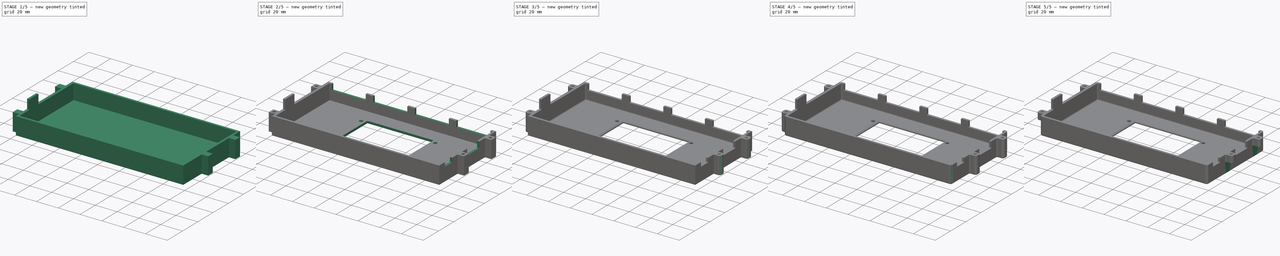
[diagram: build sequence overview — one tinted view per stage of 5, left to right]
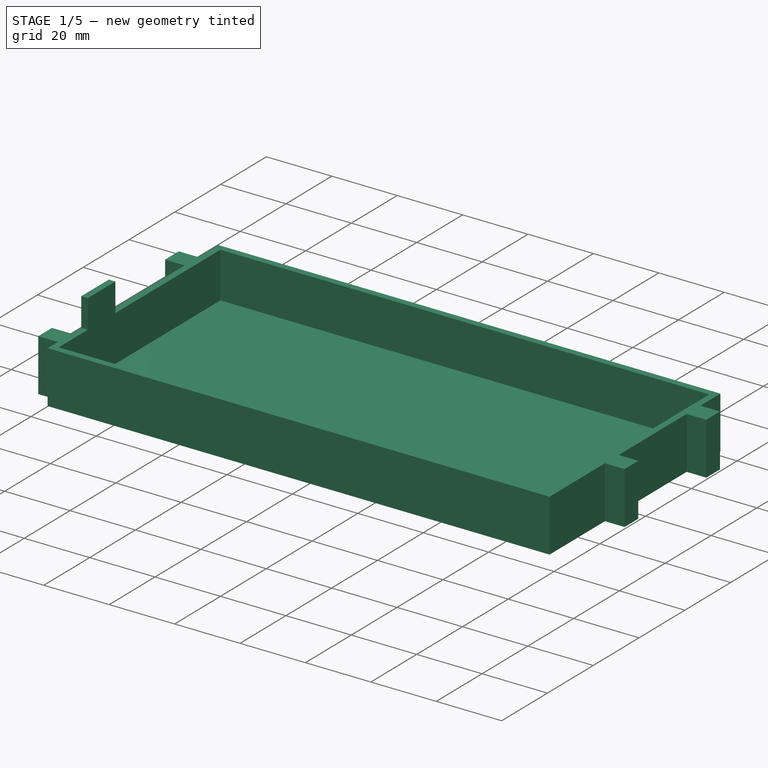
[diagram: stage 1 of 5 — iso view after this stage's code; geometry added in this stage tinted green]
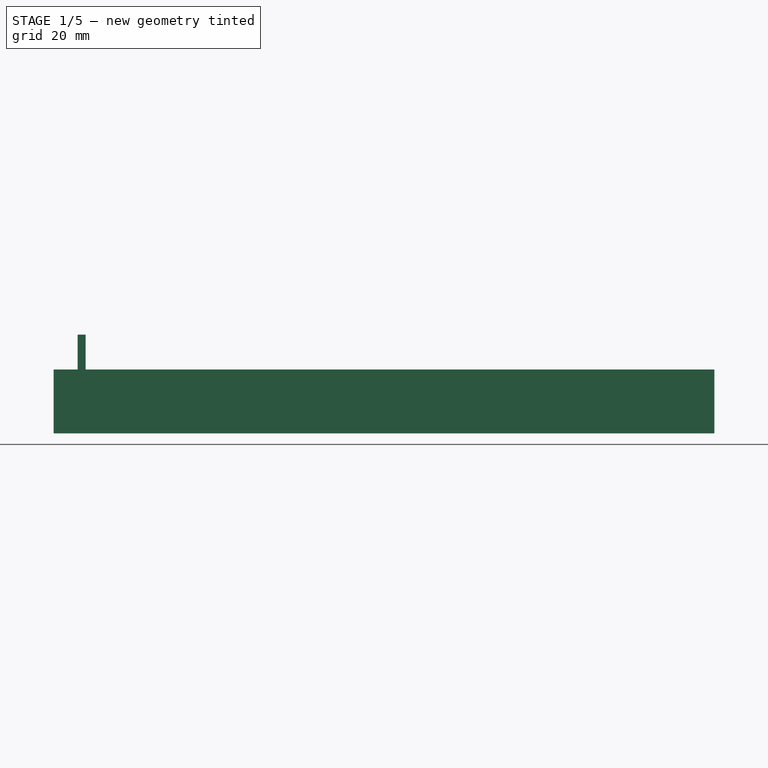
[diagram: stage 1 of 5 — front view after this stage's code; geometry added in this stage tinted green]
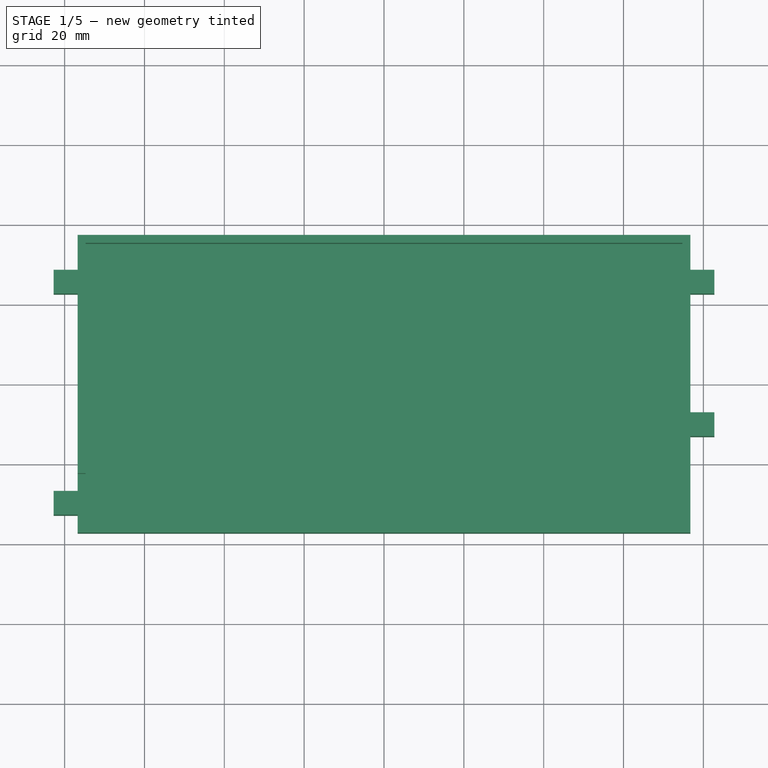
[diagram: stage 1 of 5 — top view after this stage's code; geometry added in this stage tinted green]
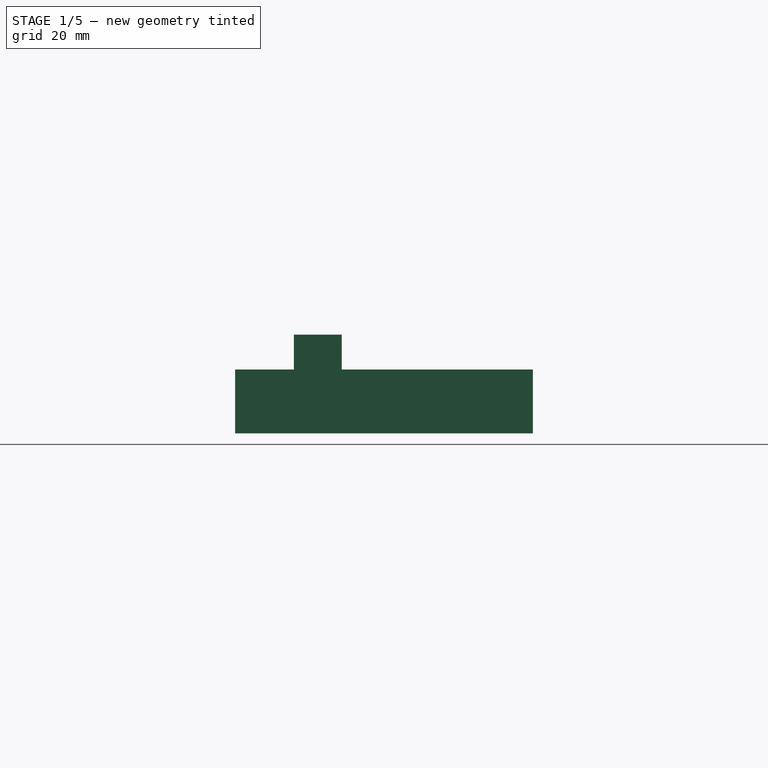
[diagram: stage 1 of 5 — right view after this stage's code; geometry added in this stage tinted green]
FCSTD DOCUMENT  (FreeCAD 0.19R24267 +148 (Git))
Label: case_top
License: All rights reserved
LicenseURL: http://en.wikipedia.org/wiki/All_rights_reserved
objects: Sketcher::SketchObject×10, PartDesign::Fillet×10, PartDesign::Pocket×8, PartDesign::Pad×1, PartDesign::Hole×1, PartDesign::Chamfer×1, PartDesign::Body×1
note: 53 computed .brp shape members not serialized (recipe doc carries the construction recipe); baked Part::Feature solids carry a one-line shape summary decoded from their .brp

FEATURE [Sketcher::SketchObject] Sketch
  FullyConstrained = true
  MapMode = 5
  Support = -> [XY_Plane]
  sketch-geometry (20):
    g0: LineSegment StartX=-76.75 StartY=37.3 StartZ=0 EndX=76.75 EndY=37.3 EndZ=0
    g1: LineSegment StartX=76.75 StartY=37.3 StartZ=0 EndX=76.75 EndY=28.57 EndZ=0
    g2: LineSegment StartX=76.75 StartY=-37.3 StartZ=0 EndX=-76.75 EndY=-37.3 EndZ=0
    g3: LineSegment StartX=-76.75 StartY=-37.3 StartZ=0 EndX=-76.75 EndY=-32.83 EndZ=0
    g4: LineSegment StartX=-76.75 StartY=-32.83 StartZ=0 EndX=-82.75 EndY=-32.83 EndZ=0
    g5: LineSegment StartX=-82.75 StartY=-32.83 StartZ=0 EndX=-82.75 EndY=-26.83 EndZ=0
    g6: LineSegment StartX=-82.75 StartY=-26.83 StartZ=0 EndX=-76.75 EndY=-26.83 EndZ=0
    g7: LineSegment StartX=-76.75 StartY=-26.83 StartZ=0 EndX=-76.75 EndY=22.57 EndZ=0
    g8: LineSegment StartX=-82.75 StartY=28.57 StartZ=0 EndX=-76.75 EndY=28.57 EndZ=0
    g9: LineSegment StartX=-76.75 StartY=22.57 StartZ=0 EndX=-82.75 EndY=22.57 EndZ=0
    g10: LineSegment StartX=-82.75 StartY=22.57 StartZ=0 EndX=-82.75 EndY=28.57 EndZ=0
    g11: LineSegment StartX=-76.75 StartY=28.57 StartZ=0 EndX=-76.75 EndY=37.3 EndZ=0
    g12: LineSegment StartX=76.75 StartY=-13.13 StartZ=0 EndX=82.75 EndY=-13.13 EndZ=0
    g13: LineSegment StartX=82.75 StartY=-13.13 StartZ=0 EndX=82.75 EndY=-7.13 EndZ=0
    g14: LineSegment StartX=82.75 StartY=-7.13 StartZ=0 EndX=76.75 EndY=-7.13 EndZ=0
    g15: LineSegment StartX=76.75 StartY=28.57 StartZ=0 EndX=82.75 EndY=28.57 EndZ=0
    g16: LineSegment StartX=82.75 StartY=28.57 StartZ=0 EndX=82.75 EndY=22.57 EndZ=0
    g17: LineSegment StartX=82.75 StartY=22.57 StartZ=0 EndX=76.75 EndY=22.57 EndZ=0
    g18: LineSegment StartX=76.75 StartY=22.57 StartZ=0 EndX=76.75 EndY=-7.13 EndZ=0
    g19: LineSegment StartX=76.75 StartY=-13.13 StartZ=0 EndX=76.75 EndY=-37.3 EndZ=0
  constraints (57):
    c: Coincident(g0,g1)
    c: Coincident(g19,g2)
    c: Coincident(g2,g3)
    c: Coincident(g11,g0)
    c: Horizontal(g0)
    c: Horizontal(g2)
    c: Vertical(g1)
    c: Vertical(g3)
    c: DistanceX(g2,g2) = 153.5
    c: DistanceY(g19,g1) = 74.6
    c: Symmetric(g19,g0,g-1)
    c: Horizontal(g4)
    c: Coincident(g5,g4)
    c: Vertical(g5)
    c: Coincident(g6,g5)
    c: DistanceY(g5,g5) = 6
    c: DistanceY(g2,g4) = 4.47
    c: Coincident(g3,g4)
    c: Coincident(g7,g6)
    c: Tangent(g3,g7)
    c: DistanceX(g6,g6) = 6
    c: DistanceY(g3,g6) = 6
    c: Coincident(g9,g10)
    c: Coincident(g10,g8)
    c: Horizontal(g8)
    c: Horizontal(g9)
    c: Vertical(g10)
    c: Tangent(g7,g11)
    c: DistanceY(g10,g10) = 6
    c: DistanceX(g9,g9) = 6
    c: DistanceY(g8,g0) = 8.73
    c: Coincident(g8,g11)
    c: Coincident(g9,g7)
    c: Coincident(g12,g13)
    c: Coincident(g13,g14)
    c: Horizontal(g12)
    c: Horizontal(g14)
    c: Vertical(g13)
    c: PointOnObject(g14,g1)
    c: PointOnObject(g12,g1)
    c: DistanceX(g14,g14) = 6
    c: DistanceY(g13,g13) = 6
    c: Coincident(g15,g16)
    c: Coincident(g16,g17)
    c: Horizontal(g15)
    c: Horizontal(g17)
    c: Vertical(g16)
    c: DistanceX(g17,g17) = 6
    c: DistanceY(g16,g16) = 6
    c: Coincident(g1,g15)
    c: Coincident(g18,g17)
    c: Tangent(g1,g18)
    c: PointOnObject(g18,g14)
    c: PointOnObject(g19,g12)
    c: Tangent(g18,g19)
    c: DistanceY(g1,g0) = 8.73
    c: DistanceY(g13,g16) = 29.7
FEATURE [PartDesign::Pad] Pad
  Direction = (1,1,1)
  Length = 15
  Length2 = 10
  Profile = -> Sketch
  Reversed = true
  Type = 4
FEATURE [Sketcher::SketchObject] Sketch016
  ExternalGeometry = -> [Pad]
  FullyConstrained = true
  MapMode = 5
  Placement = pos=(0,0,15) rot=(0,0,1;0rad)
  Support = -> [Pad]
  sketch-geometry (4):
    g0: LineSegment StartX=-74.75 StartY=35.3 StartZ=0 EndX=74.75 EndY=35.3 EndZ=0
    g1: LineSegment StartX=74.75 StartY=35.3 StartZ=0 EndX=74.75 EndY=-35.3 EndZ=0
    g2: LineSegment StartX=74.75 StartY=-35.3 StartZ=0 EndX=-74.75 EndY=-35.3 EndZ=0
    g3: LineSegment StartX=-74.75 StartY=-35.3 StartZ=0 EndX=-74.75 EndY=35.3 EndZ=0
  constraints (12):
    c: Coincident(g0,g1)
    c: Coincident(g1,g2)
    c: Coincident(g2,g3)
    c: Coincident(g3,g0)
    c: Horizontal(g0)
    c: Horizontal(g2)
    c: Vertical(g1)
    c: Vertical(g3)
    c: DistanceX(g-3,g0) = 2
    c: DistanceY(g0,g-3) = 2
    c: DistanceX(g1,g-4) = 2
    c: DistanceY(g-4,g1) = 2
FEATURE [PartDesign::Pocket] Pocket
  BaseFeature = -> Pad
  Length = 23
  Length2 = 100
  Profile = -> Sketch016
  Type = 0
FEATURE [Sketcher::SketchObject] Sketch017
  ExternalGeometry = -> [Pocket]
  FullyConstrained = true
  MapMode = 5
  Placement = pos=(-82.75,0,0) rot=(0.57735,-0.57735,-0.57735;2.0944rad)
  Support = -> [Pocket]
  sketch-geometry (8):
    g0: LineSegment StartX=37.3 StartY=6 StartZ=0 EndX=22.58 EndY=6 EndZ=0
    g1: LineSegment StartX=-37.3 StartY=6 StartZ=0 EndX=-37.3 EndY=15 EndZ=0
    g2: LineSegment StartX=37.3 StartY=15 StartZ=0 EndX=37.3 EndY=6 EndZ=0
    g3: LineSegment StartX=22.58 StartY=6 StartZ=0 EndX=22.58 EndY=14.75 EndZ=0
    g4: LineSegment StartX=10.58 StartY=6 StartZ=0 EndX=10.58 EndY=14.75 EndZ=0
    g5: LineSegment StartX=10.58 StartY=6 StartZ=0 EndX=-37.3 EndY=6 EndZ=0
    g6: LineSegment StartX=22.58 StartY=14.75 StartZ=0 EndX=10.58 EndY=14.75 EndZ=0
    g7: LineSegment StartX=37.3 StartY=15 StartZ=0 EndX=-37.3 EndY=15 EndZ=0
  constraints (23):
    c: Coincident(g5,g1)
    c: Coincident(g2,g0)
    c: Horizontal(g0)
    c: Vertical(g1)
    c: Vertical(g2)
    c: Vertical(g5,g-3)
    c: Vertical(g0,g-4)
    c: DistanceY(g-3,g5) = 16
    c: Vertical(g3)
    c: Vertical(g4)
    c: Coincident(g0,g3)
    c: Coincident(g5,g4)
    c: Tangent(g0,g5)
    c: DistanceX(g0,g0) = 14.72
    c: DistanceX(g4,g0) = 12
    c: Horizontal(g6)
    c: Coincident(g3,g6)
    c: Coincident(g4,g6)
    c: DistanceY(g4,g4) = 8.75
    c: Coincident(g7,g2)
    c: Coincident(g7,g1)
    c: Horizontal(g7)
    c: Horizontal(g2,g-5)
FEATURE [PartDesign::Pocket] Pocket001
  BaseFeature = -> Pocket
  Length = 140
  Length2 = 100
  Profile = -> Sketch017
  Type = 0
FEATURE [Sketcher::SketchObject] Sketch020
  ExternalGeometry = -> [Pocket001]
  FullyConstrained = true
  MapMode = 5
  Placement = pos=(82.75,0,0) rot=(0.57735,0.57735,0.57735;2.0944rad)
  Support = -> [Pocket001]
  sketch-geometry (4):
    g0: LineSegment StartX=37.3 StartY=6 StartZ=0 EndX=-37.3 EndY=6 EndZ=0
    g1: LineSegment StartX=-37.3 StartY=6 StartZ=0 EndX=-37.3 EndY=15 EndZ=0
    g2: LineSegment StartX=-37.3 StartY=15 StartZ=0 EndX=37.3 EndY=15 EndZ=0
    g3: LineSegment StartX=37.3 StartY=15 StartZ=0 EndX=37.3 EndY=6 EndZ=0
  constraints (10):
    c: Coincident(g0,g1)
    c: Coincident(g1,g2)
    c: Coincident(g2,g3)
    c: Coincident(g3,g0)
    c: Horizontal(g0)
    c: Vertical(g1)
    c: Vertical(g3)
    c: Coincident(g2,g-6)
    c: Coincident(g1,g-5)
    c: DistanceY(g-3,g0) = 16
FEATURE [PartDesign::Pocket] Pocket002
  BaseFeature = -> Pocket001
  Length = 0
  Length2 = 100
  Profile = -> Sketch020
  Type = 3
  UpToFace = -> Pocket001 [Face25]
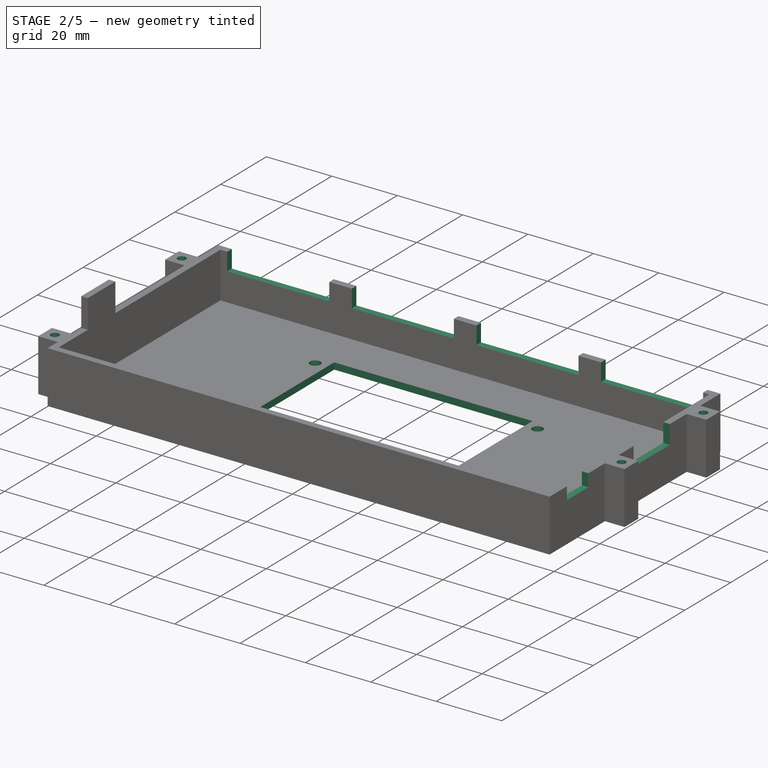
[diagram: stage 2 of 5 — iso view after this stage's code; geometry added in this stage tinted green]
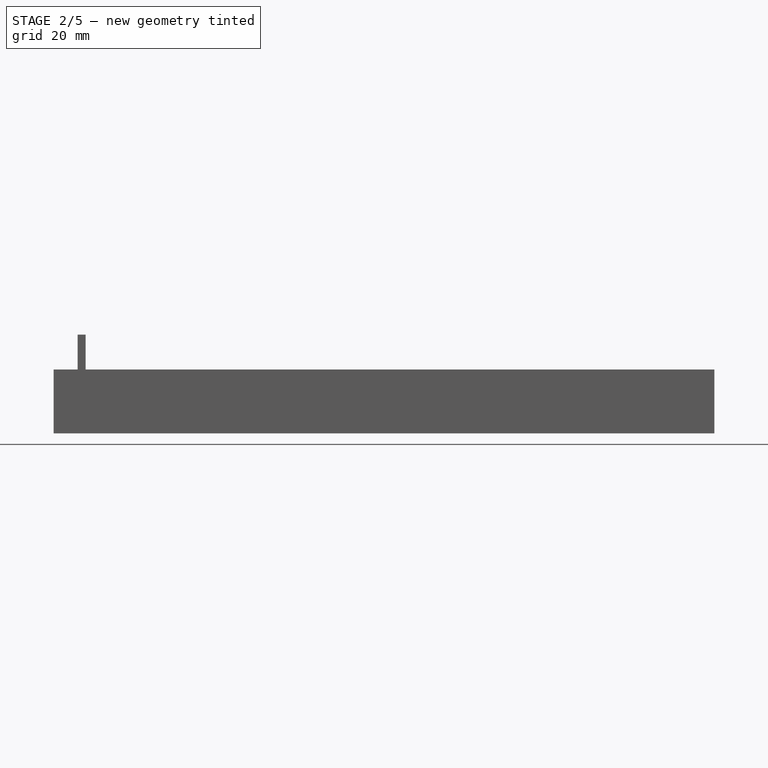
[diagram: stage 2 of 5 — front view after this stage's code; geometry added in this stage tinted green]
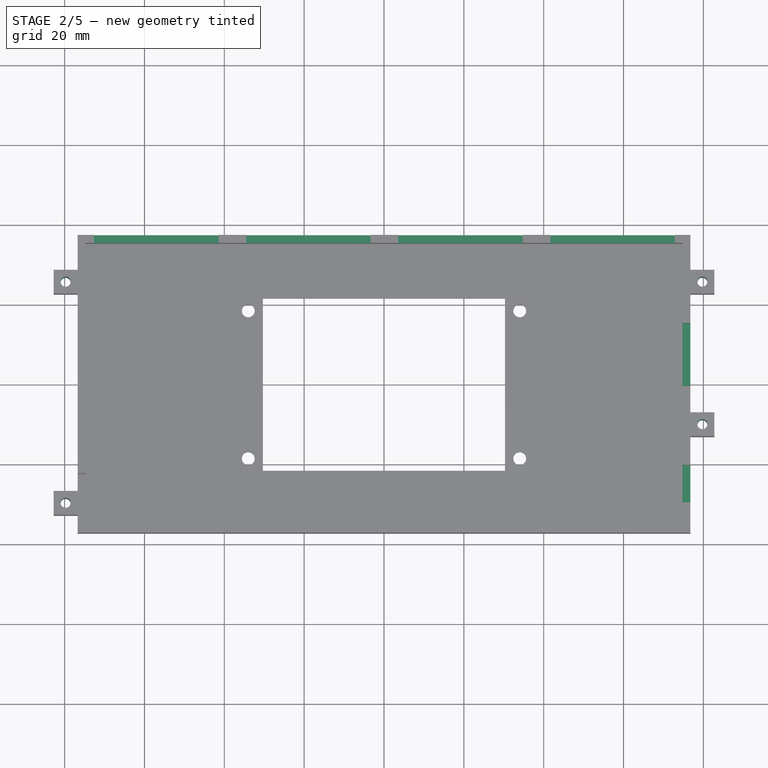
[diagram: stage 2 of 5 — top view after this stage's code; geometry added in this stage tinted green]
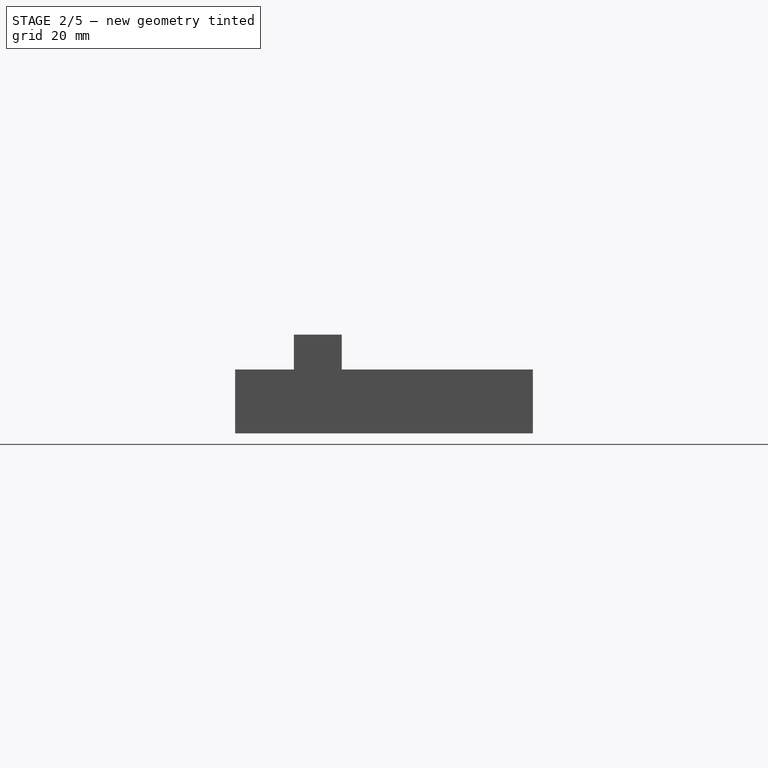
[diagram: stage 2 of 5 — right view after this stage's code; geometry added in this stage tinted green]
FEATURE [Sketcher::SketchObject] Sketch021
  ExternalGeometry = -> [Pocket002]
  FullyConstrained = true
  MapMode = 5
  Placement = pos=(82.75,0,0) rot=(0.57735,0.57735,0.57735;2.0944rad)
  Support = -> [Pocket002]
  sketch-geometry (8):
    g0: LineSegment StartX=-20.33 StartY=2.15 StartZ=0 EndX=-29.73 EndY=2.15 EndZ=0
    g1: LineSegment StartX=-29.73 StartY=2.15 StartZ=0 EndX=-29.73 EndY=6 EndZ=0
    g2: LineSegment StartX=-29.73 StartY=6 StartZ=0 EndX=-20.33 EndY=6 EndZ=0
    g3: LineSegment StartX=-20.33 StartY=6 StartZ=0 EndX=-20.33 EndY=2.15 EndZ=0
    g4: LineSegment StartX=-0.6 StartY=6 StartZ=0 EndX=15.2 EndY=6 EndZ=0
    g5: LineSegment StartX=15.2 StartY=6 StartZ=0 EndX=15.2 EndY=0.3 EndZ=0
    g6: LineSegment StartX=15.2 StartY=0.3 StartZ=0 EndX=-0.6 EndY=0.3 EndZ=0
    g7: LineSegment StartX=-0.6 StartY=0.3 StartZ=0 EndX=-0.6 EndY=6 EndZ=0
  constraints (24):
    c: Coincident(g0,g1)
    c: Coincident(g1,g2)
    c: Coincident(g2,g3)
    c: Coincident(g3,g0)
    c: Horizontal(g0)
    c: Horizontal(g2)
    c: Vertical(g1)
    c: Vertical(g3)
    c: DistanceX(g-3,g0) = 7.57
    c: DistanceY(g1,g1) = 3.85
    c: DistanceX(g0,g0) = 9.4
    c: Coincident(g4,g5)
    c: Coincident(g5,g6)
    c: Coincident(g6,g7)
    c: Vertical(g5)
    c: Vertical(g7)
    c: DistanceX(g-3,g4) = 36.7
    c: DistanceX(g4,g4) = 15.8
    c: DistanceY(g5,g5) = 5.7
    c: PointOnObject(g2,g-5)
    c: Coincident(g4,g7)
    c: Equal(g7,g5)
    c: PointOnObject(g4,g-6)
    c: PointOnObject(g4,g-6)
FEATURE [PartDesign::Pocket] Pocket003
  BaseFeature = -> Pocket002
  Length = 0
  Length2 = 100
  Profile = -> Sketch021
  Type = 3
  UpToFace = -> Pocket002 [Face25]
FEATURE [Sketcher::SketchObject] Sketch019
  ExternalGeometry = -> [Pocket003]
  FullyConstrained = true
  MapMode = 5
  Placement = pos=(0,0,-10) rot=(1,0,0;3.14159rad)
  sketch-geometry (4):
    g0: Circle CenterX=-79.75 CenterY=29.83 CenterZ=0 NormalX=0 NormalY=0 NormalZ=1 AngleXU=0 Radius=1.2
    g1: Circle CenterX=-79.75 CenterY=-25.57 CenterZ=0 NormalX=0 NormalY=0 NormalZ=1 AngleXU=0 Radius=1.2
    g2: Circle CenterX=79.75 CenterY=-25.57 CenterZ=0 NormalX=0 NormalY=0 NormalZ=1 AngleXU=0 Radius=1.2
    g3: Circle CenterX=79.75 CenterY=10.13 CenterZ=0 NormalX=0 NormalY=0 NormalZ=1 AngleXU=0 Radius=1.2
  constraints (12):
    c: Radius(g0) = 1.2
    c: Radius(g1) = 1.2
    c: Radius(g2) = 1.2
    c: Radius(g3) = 1.2
    c: DistanceX(g-4,g0) = 3
    c: DistanceX(g-3,g1) = 3
    c: DistanceX(g2,g-6) = 3
    c: DistanceX(g3,g-5) = 3
    c: DistanceY(g3,g-5) = 3
    c: DistanceY(g-6,g2) = 3
    c: DistanceY(g1,g-3) = 3
    c: DistanceY(g0,g-4) = 3
FEATURE [PartDesign::Hole] Hole
  BaseFeature = -> Pocket003
  Depth = 25
  DepthType = 0
  Diameter = 2.5
  DrillForDepth = false
  DrillPoint = 1
  DrillPointAngle = 118
  HoleCutCountersinkAngle = 90
  HoleCutCustomValues = false
  HoleCutDepth = 0
  HoleCutDiameter = 6.1
  HoleCutType = 0
  ModelActualThread = false
  Profile = -> Sketch019
  Tapered = false
  TaperedAngle = 90
  ThreadAngle = 60
  ThreadClass = 0
  ThreadCutOffInner = 0.0541266
  ThreadCutOffOuter = 0.108253
  ThreadDirection = 0
  ThreadFit = 0
  ThreadPitch = 0.5
  ThreadSize = 9
  ThreadType = 1
  Threaded = true
FEATURE [Sketcher::SketchObject] Sketch022
  ExternalGeometry = -> [Hole]
  FullyConstrained = true
  MapMode = 5
  Placement = pos=(0,37.3,0) rot=(0,0.707107,0.707107;3.14159rad)
  Support = -> [Hole]
  sketch-geometry (16):
    g0: LineSegment StartX=72.65 StartY=0.6 StartZ=0 EndX=41.45 EndY=0.6 EndZ=0
    g1: LineSegment StartX=41.45 StartY=0.6 StartZ=0 EndX=41.45 EndY=6 EndZ=0
    g2: LineSegment StartX=41.45 StartY=6 StartZ=0 EndX=72.65 EndY=6 EndZ=0
    g3: LineSegment StartX=72.65 StartY=6 StartZ=0 EndX=72.65 EndY=0.6 EndZ=0
    g4: LineSegment StartX=34.55 StartY=0.6 StartZ=0 EndX=3.35 EndY=0.6 EndZ=0
    g5: LineSegment StartX=3.35 StartY=0.6 StartZ=0 EndX=3.35 EndY=6 EndZ=0
    g6: LineSegment StartX=3.35 StartY=6 StartZ=0 EndX=34.55 EndY=6 EndZ=0
    g7: LineSegment StartX=34.55 StartY=6 StartZ=0 EndX=34.55 EndY=0.6 EndZ=0
    g8: LineSegment StartX=-3.55 StartY=0.6 StartZ=0 EndX=-34.75 EndY=0.6 EndZ=0
    g9: LineSegment StartX=-34.75 StartY=0.6 StartZ=0 EndX=-34.75 EndY=6 EndZ=0
    g10: LineSegment StartX=-34.75 StartY=6 StartZ=0 EndX=-3.55 EndY=6 EndZ=0
    g11: LineSegment StartX=-3.55 StartY=6 StartZ=0 EndX=-3.55 EndY=0.6 EndZ=0
    g12: LineSegment StartX=-41.65 StartY=0.6 StartZ=0 EndX=-72.85 EndY=0.6 EndZ=0
    g13: LineSegment StartX=-72.85 StartY=0.6 StartZ=0 EndX=-72.85 EndY=6 EndZ=0
    g14: LineSegment StartX=-72.85 StartY=6 StartZ=0 EndX=-41.65 EndY=6 EndZ=0
    g15: LineSegment StartX=-41.65 StartY=6 StartZ=0 EndX=-41.65 EndY=0.6 EndZ=0
  constraints (48):
    c: Coincident(g0,g1)
    c: Coincident(g1,g2)
    c: Coincident(g2,g3)
    c: Coincident(g3,g0)
    c: Horizontal(g0)
    c: Horizontal(g2)
    c: Vertical(g1)
    c: Vertical(g3)
    c: PointOnObject(g1,g-3)
    c: DistanceY(g3,g3) = 5.4
    c: DistanceX(g0,g0) = 31.2
    c: DistanceX(g2,g-3) = 4.1
    c: Coincident(g4,g5)
    c: Coincident(g5,g6)
    c: Coincident(g6,g7)
    c: Coincident(g7,g4)
    c: Horizontal(g4)
    c: Horizontal(g6)
    c: Vertical(g5)
    c: Vertical(g7)
    c: Coincident(g8,g9)
    c: Coincident(g9,g10)
    c: Coincident(g10,g11)
    c: Coincident(g11,g8)
    c: Horizontal(g8)
    c: Horizontal(g10)
    c: Vertical(g9)
    c: Vertical(g11)
    c: Coincident(g12,g13)
    c: Coincident(g13,g14)
    c: Coincident(g14,g15)
    c: Coincident(g15,g12)
    c: Horizontal(g12)
    c: Horizontal(g14)
    c: Vertical(g13)
    c: Vertical(g15)
    c: PointOnObject(g6,g-3)
    c: Equal(g7,g3)
    c: Equal(g4,g0)
    c: DistanceX(g4,g0) = 6.9
    c: PointOnObject(g10,g-3)
    c: Equal(g11,g3)
    c: DistanceX(g8,g4) = 6.9
    c: Equal(g8,g0)
    c: PointOnObject(g14,g-3)
    c: Equal(g15,g3)
    c: Equal(g2,g14)
    c: DistanceX(g12,g8) = 6.9
FEATURE [PartDesign::Pocket] Pocket004
  BaseFeature = -> Hole
  Length = 0
  Length2 = 100
  Profile = -> Sketch022
  Type = 3
  UpToFace = -> Hole [Face44]
FEATURE [Sketcher::SketchObject] Sketch023
  FullyConstrained = true
  MapMode = 5
  Placement = pos=(0,0,-10) rot=(1,0,0;3.14159rad)
  Support = -> [Pocket004]
  sketch-geometry (8):
    g0: LineSegment StartX=-30.325 StartY=21.56 StartZ=0 EndX=30.325 EndY=21.56 EndZ=0
    g1: LineSegment StartX=30.325 StartY=21.56 StartZ=0 EndX=30.325 EndY=-21.56 EndZ=0
    g2: LineSegment StartX=30.325 StartY=-21.56 StartZ=0 EndX=-30.325 EndY=-21.56 EndZ=0
    g3: LineSegment StartX=-30.325 StartY=-21.56 StartZ=0 EndX=-30.325 EndY=21.56 EndZ=0
    g4: Circle CenterX=-33.995 CenterY=18.5 CenterZ=0 NormalX=0 NormalY=0 NormalZ=1 AngleXU=0 Radius=1.6
    g5: Circle CenterX=-33.995 CenterY=-18.5 CenterZ=0 NormalX=0 NormalY=0 NormalZ=1 AngleXU=0 Radius=1.6
    g6: Circle CenterX=34.005 CenterY=-18.5 CenterZ=0 NormalX=0 NormalY=0 NormalZ=1 AngleXU=0 Radius=1.6
    g7: Circle CenterX=34.005 CenterY=18.5 CenterZ=0 NormalX=0 NormalY=0 NormalZ=1 AngleXU=0 Radius=1.6
  constraints (24):
    c: Coincident(g0,g1)
    c: Coincident(g1,g2)
    c: Coincident(g2,g3)
    c: Coincident(g3,g0)
    c: Horizontal(g0)
    c: Horizontal(g2)
    c: Vertical(g1)
    c: Vertical(g3)
    c: DistanceX(g0,g0) = 60.65
    c: DistanceX(g0,g-1) = 30.325
    c: DistanceY(g3,g3) = 43.12
    c: DistanceY(g-1,g0) = 21.56
    c: Radius(g4) = 1.6
    c: Equal(g5,g4)
    c: Equal(g6,g7)
    c: Equal(g7,g4)
    c: DistanceX(g4,g7) = 68
    c: DistanceX(g5,g6) = 68
    c: DistanceX(g4,g0) = 3.67
    c: Horizontal(g6,g5)
    c: Vertical(g5,g4)
    c: DistanceY(g5,g4) = 37
    c: DistanceY(g6,g7) = 37
    c: DistanceY(g4,g0) = 3.06
FEATURE [PartDesign::Pocket] Pocket005
  BaseFeature = -> Pocket004
  Length = 0
  Length2 = 100
  Profile = -> Sketch023
  Type = 3
  UpToFace = -> Pocket004 [Face58]
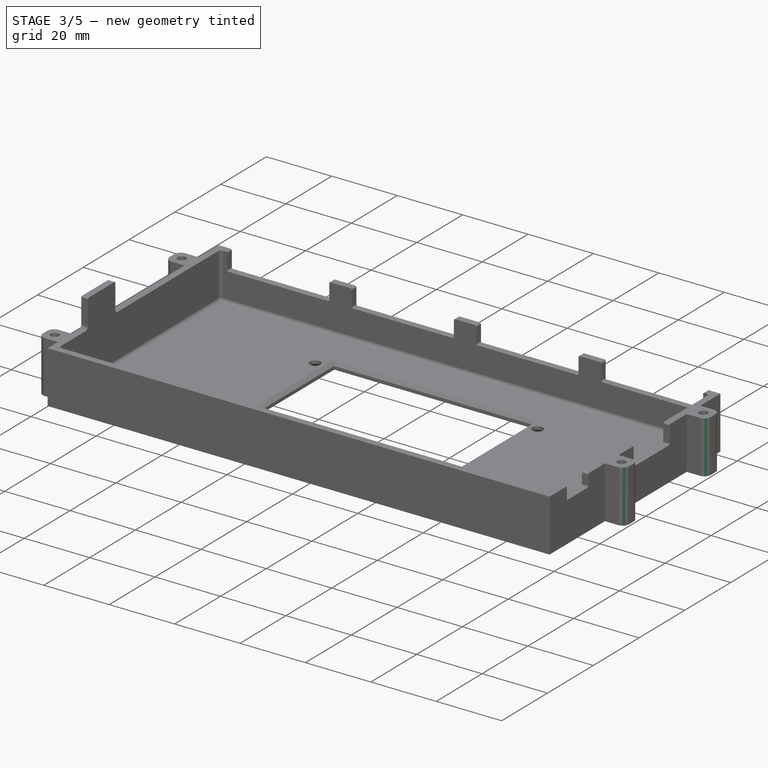
[diagram: stage 3 of 5 — iso view after this stage's code; geometry added in this stage tinted green]
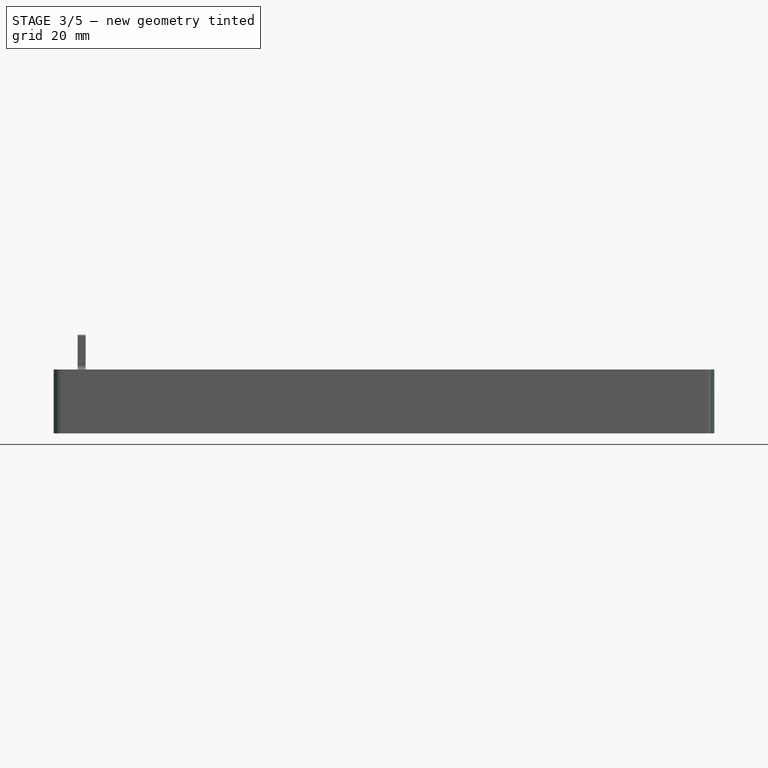
[diagram: stage 3 of 5 — front view after this stage's code; geometry added in this stage tinted green]
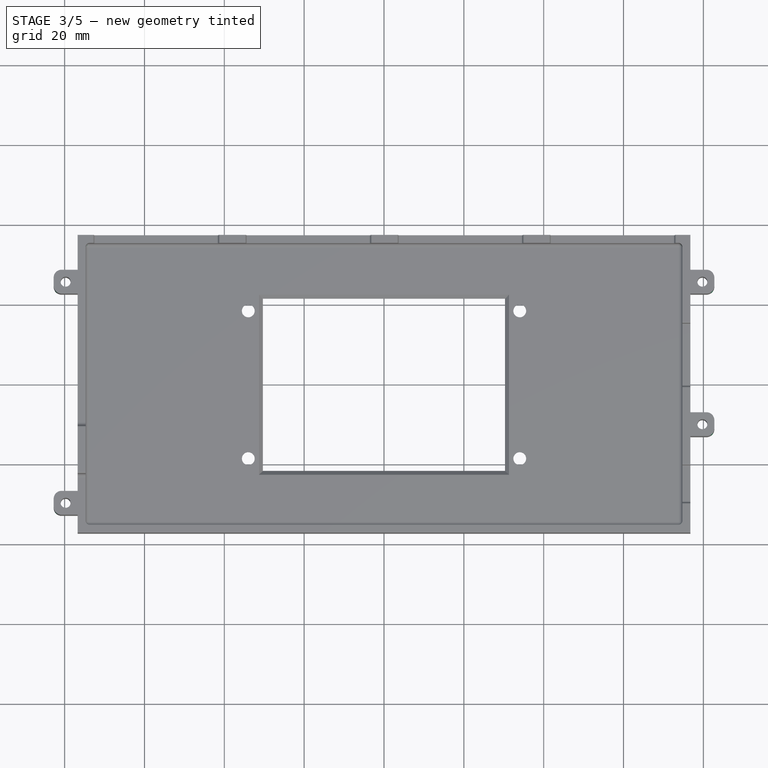
[diagram: stage 3 of 5 — top view after this stage's code; geometry added in this stage tinted green]
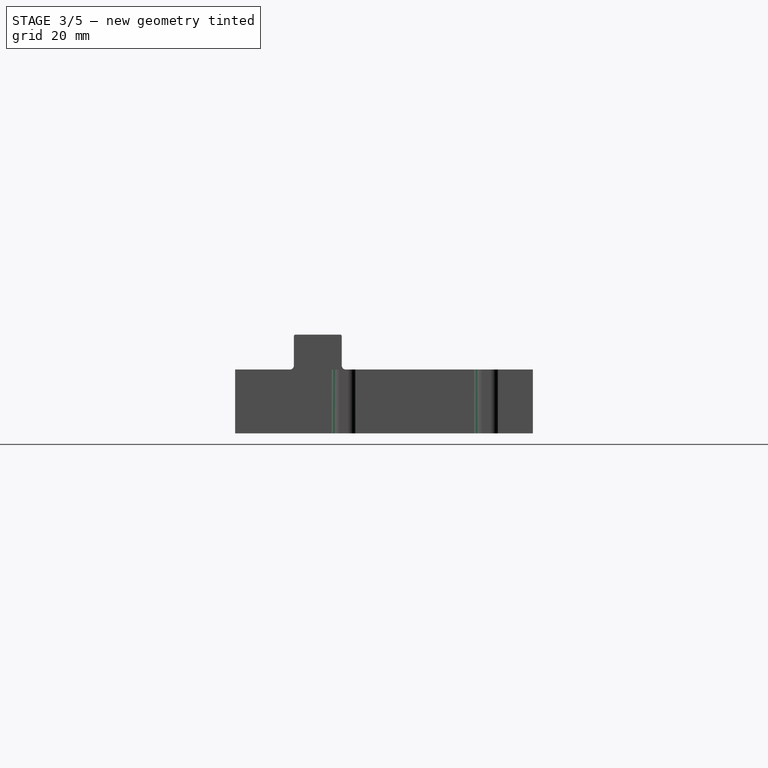
[diagram: stage 3 of 5 — right view after this stage's code; geometry added in this stage tinted green]
FEATURE [PartDesign::Chamfer] Chamfer
  Angle = 45
  Base = -> Pocket005 [Edge127,Edge129,Edge133,Edge132,Edge33,Edge38,Edge30,Edge28]
  BaseFeature = -> Pocket005
  ChamferType = 0
  FlipDirection = false
  Size = 1
  Size2 = 1
  SupportTransform = false
FEATURE [PartDesign::Fillet] Fillet
  Base = -> Chamfer [Edge206,Edge208,Edge207,Edge209,Edge205,Edge211,Edge204,Edge210]
  BaseFeature = -> Chamfer
  Radius = 1
  SupportTransform = false
FEATURE [PartDesign::Fillet] Fillet001
  Base = -> Fillet [Edge173,Edge232,Edge234,Edge236,Edge237,Edge239,Edge235,Edge230,Edge231,Edge229,Edge227,Edge146,Edge228,Edge233,Edge238,Edge78,Edge92,Edge88,Edge101,Edge38,Edge6,Edge98,Edge94,Edge75,Edge140,Edge58]
  BaseFeature = -> Fillet
  Radius = 0.4
  SupportTransform = false
FEATURE [PartDesign::Fillet] Fillet002
  Base = -> Fillet001 [Edge129,Edge242,Edge191,Edge194,Edge248,Edge246,Edge153,Edge152]
  BaseFeature = -> Fillet001
  Radius = 2
  SupportTransform = false
FEATURE [PartDesign::Fillet] Fillet003
  Base = -> Fillet002 [Edge127,Edge12]
  BaseFeature = -> Fillet002
  Radius = 1
  SupportTransform = false
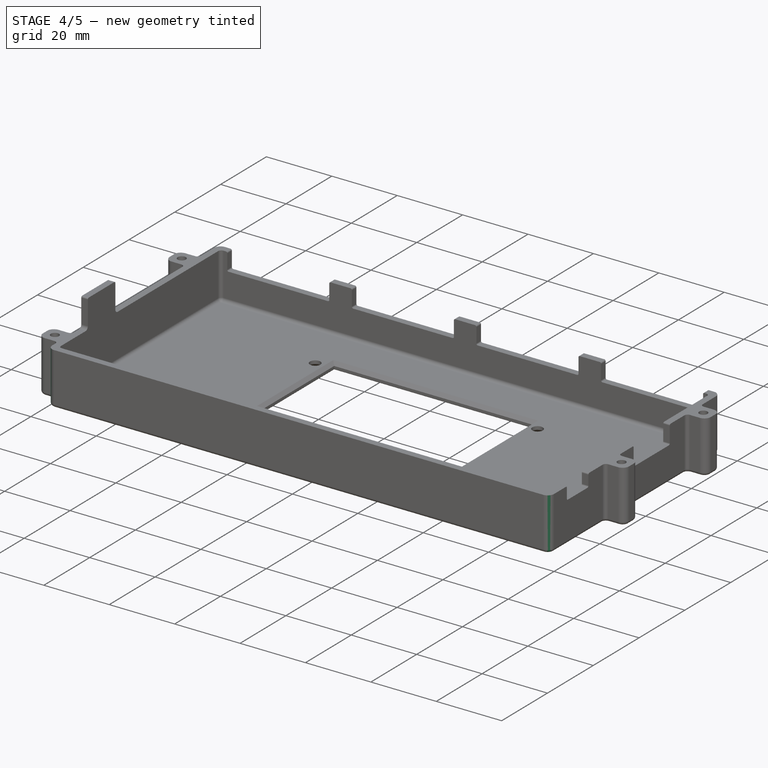
[diagram: stage 4 of 5 — iso view after this stage's code; geometry added in this stage tinted green]
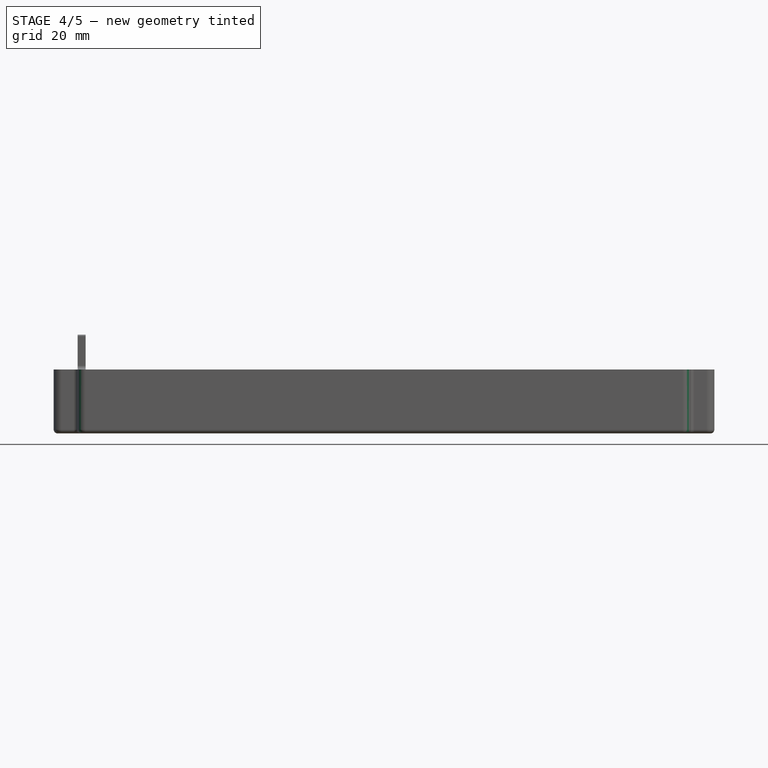
[diagram: stage 4 of 5 — front view after this stage's code; geometry added in this stage tinted green]
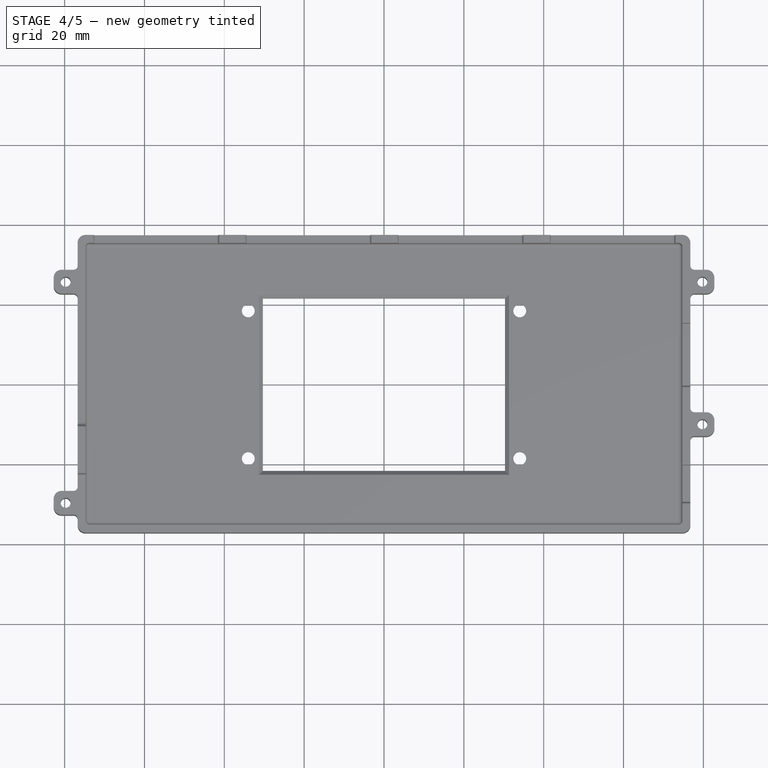
[diagram: stage 4 of 5 — top view after this stage's code; geometry added in this stage tinted green]
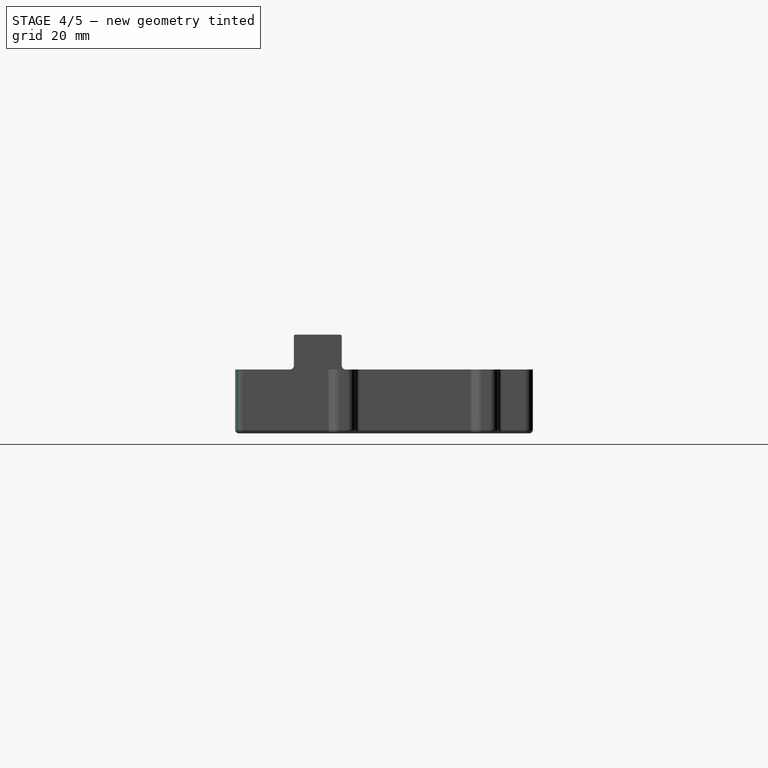
[diagram: stage 4 of 5 — right view after this stage's code; geometry added in this stage tinted green]
FEATURE [PartDesign::Fillet] Fillet004
  Base = -> Fillet003 [Edge219,Edge19,Edge57,Edge23,Edge146,Edge166,Edge160,Edge180]
  BaseFeature = -> Fillet003
  Radius = 1
  SupportTransform = false
FEATURE [PartDesign::Fillet] Fillet007
  Base = -> Fillet004 [Edge63,Edge64,Edge212,Edge205]
  BaseFeature = -> Fillet004
  Radius = 2
  SupportTransform = false
FEATURE [PartDesign::Fillet] Fillet008
  Base = -> Fillet007 [Edge99,Edge18,Edge74]
  BaseFeature = -> Fillet007
  Radius = 1
  SupportTransform = false
FEATURE [PartDesign::Fillet] Fillet009
  Base = -> Fillet008 [Edge89,Edge91,Edge92,Edge90]
  BaseFeature = -> Fillet008
  Radius = 0.2
  SupportTransform = false
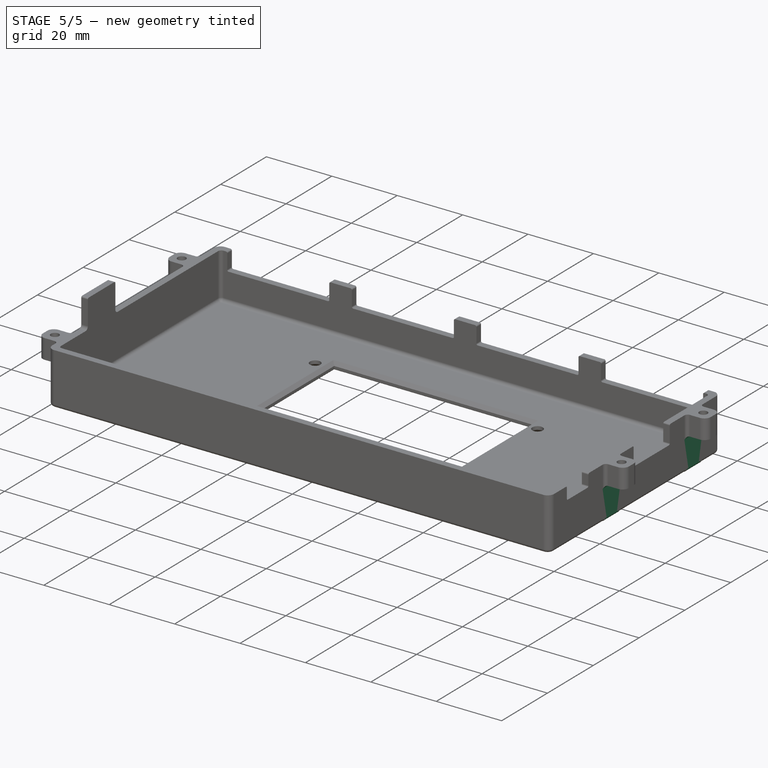
[diagram: stage 5 of 5 — iso view after this stage's code; geometry added in this stage tinted green]
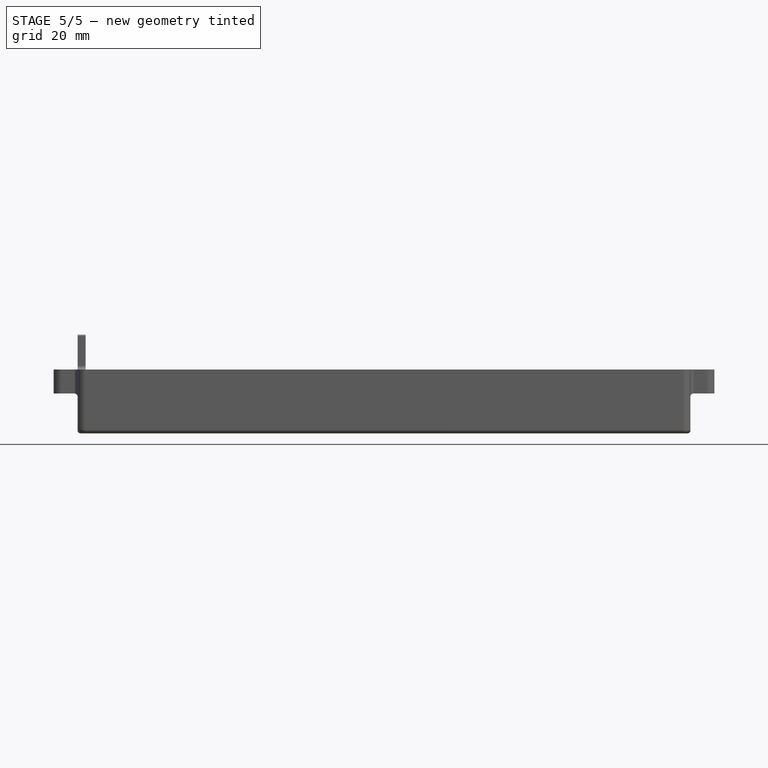
[diagram: stage 5 of 5 — front view after this stage's code; geometry added in this stage tinted green]
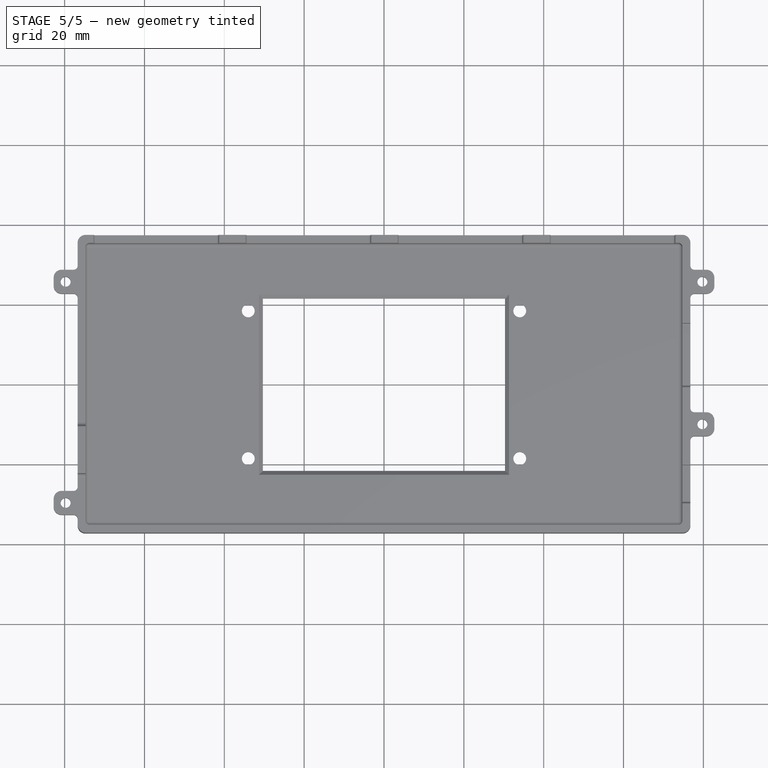
[diagram: stage 5 of 5 — top view after this stage's code; geometry added in this stage tinted green]
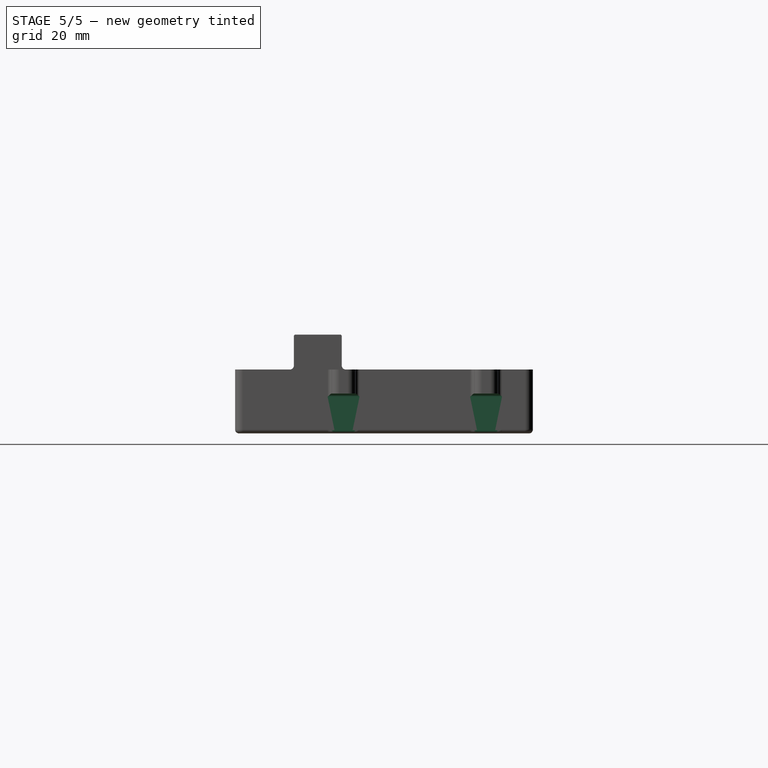
[diagram: stage 5 of 5 — right view after this stage's code; geometry added in this stage tinted green]
FEATURE [Sketcher::SketchObject] Sketch024
  FullyConstrained = false
  MapMode = 5
  Placement = pos=(-82.75,0,0) rot=(0.57735,-0.57735,-0.57735;2.0944rad)
  Support = -> [Fillet009]
  sketch-geometry (4):
    g0: LineSegment StartX=41.226 StartY=-15.3262 StartZ=0 EndX=-47.5242 EndY=-15.3262 EndZ=0
    g1: LineSegment StartX=-47.5242 StartY=-15.3262 StartZ=0 EndX=-47.5242 EndY=0 EndZ=0
    g2: LineSegment StartX=-47.5242 StartY=0 StartZ=0 EndX=41.226 EndY=0 EndZ=0
    g3: LineSegment StartX=41.226 StartY=0 StartZ=0 EndX=41.226 EndY=-15.3262 EndZ=0
  constraints (9):
    c: Coincident(g0,g1)
    c: Coincident(g1,g2)
    c: Coincident(g2,g3)
    c: Coincident(g3,g0)
    c: Horizontal(g0)
    c: Horizontal(g2)
    c: Vertical(g1)
    c: Vertical(g3)
    c: PointOnObject(g1,g-1)
FEATURE [PartDesign::Pocket] Pocket006
  BaseFeature = -> Fillet009
  Length = 0
  Length2 = 100
  Profile = -> Sketch024
  Type = 2
FEATURE [PartDesign::Fillet] Fillet010
  Base = -> Pocket006 [Edge8,Edge57,Edge4,Edge49]
  BaseFeature = -> Pocket006
  Radius = 0.8
  SupportTransform = false
FEATURE [Sketcher::SketchObject] Sketch025
  FullyConstrained = false
  MapMode = 5
  Placement = pos=(82.75,0,0) rot=(0.57735,0.57735,0.57735;2.0944rad)
  Support = -> [Fillet010]
  sketch-geometry (4):
    g0: LineSegment StartX=-46.991 StartY=0 StartZ=0 EndX=49.6624 EndY=0 EndZ=0
    g1: LineSegment StartX=49.6624 StartY=0 StartZ=0 EndX=49.6624 EndY=-12.5527 EndZ=0
    g2: LineSegment StartX=49.6624 StartY=-12.5527 StartZ=0 EndX=-46.991 EndY=-12.5527 EndZ=0
    g3: LineSegment StartX=-46.991 StartY=-12.5527 StartZ=0 EndX=-46.991 EndY=0 EndZ=0
  constraints (9):
    c: Coincident(g0,g1)
    c: Coincident(g1,g2)
    c: Coincident(g2,g3)
    c: Coincident(g3,g0)
    c: Horizontal(g0)
    c: Horizontal(g2)
    c: Vertical(g1)
    c: Vertical(g3)
    c: PointOnObject(g0,g-1)
FEATURE [PartDesign::Pocket] Pocket007
  BaseFeature = -> Fillet010
  Length = 5
  Length2 = 100
  Profile = -> Sketch025
  Type = 2
FEATURE [PartDesign::Fillet] Fillet011
  Base = -> Pocket007 [Edge21,Edge80,Edge17,Edge69]
  BaseFeature = -> Pocket007
  Radius = 0.8
  SupportTransform = false
FEATURE [PartDesign::Body] Body
  Group = -> [Sketch,Pad,Sketch016,Pocket,Sketch017,Pocket001,Sketch019,Sketch020,Pocket002,Sketch021,Pocket003,Hole,Sketch022,Pocket004,Sketch023,Pocket005,Chamfer,Fillet,Fillet001,Fillet002,Fillet003,Fillet004,Fillet007,Fillet008,Fillet009,Sketch024,Pocket006,Fillet010,Sketch025,Pocket007,Fillet011]
  Origin = -> Origin
  Tip = -> Fillet011
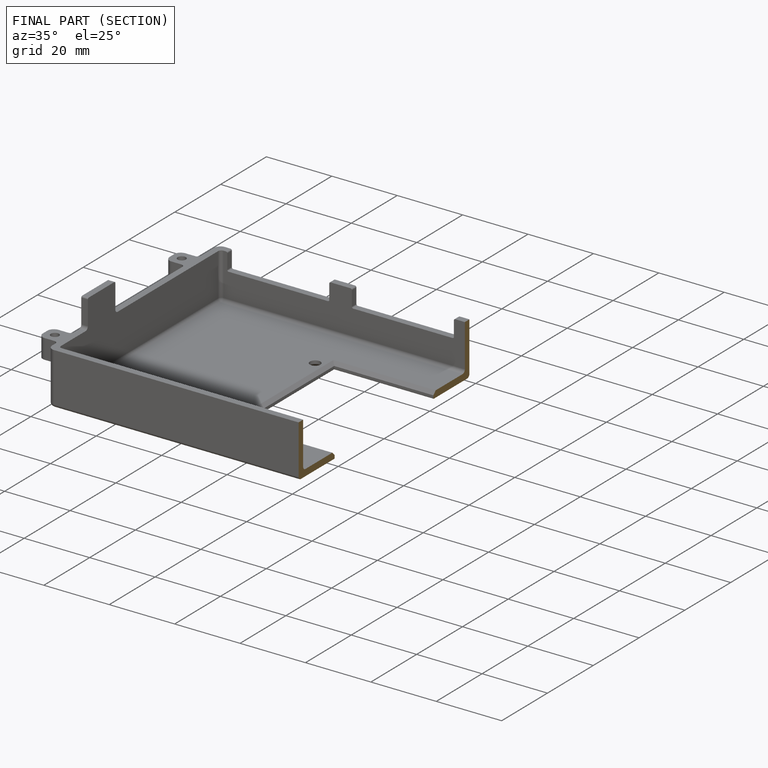
[diagram: finished part — half-section view (interior)]
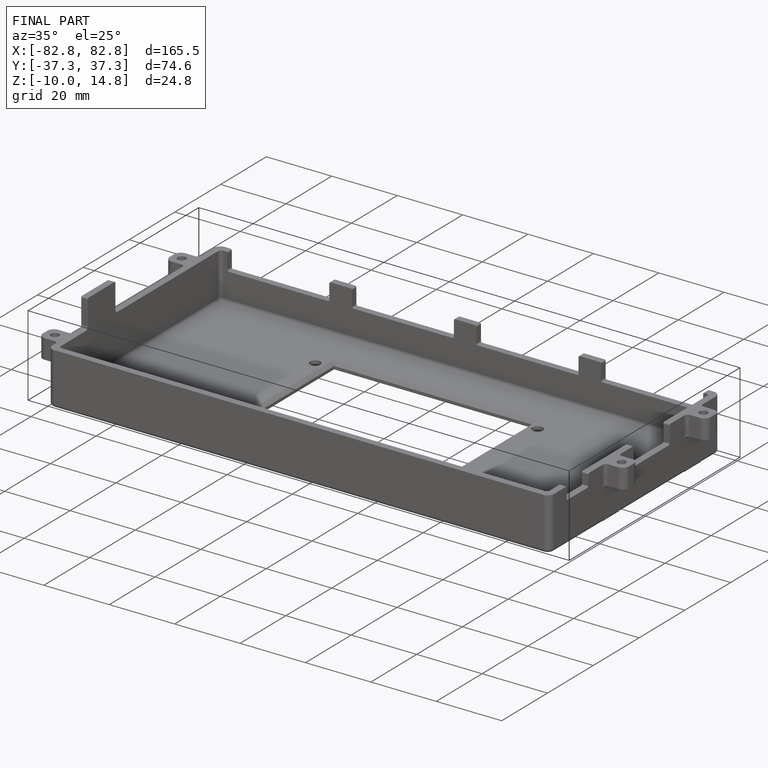
[diagram: finished part — iso view with bounding-box wireframe]
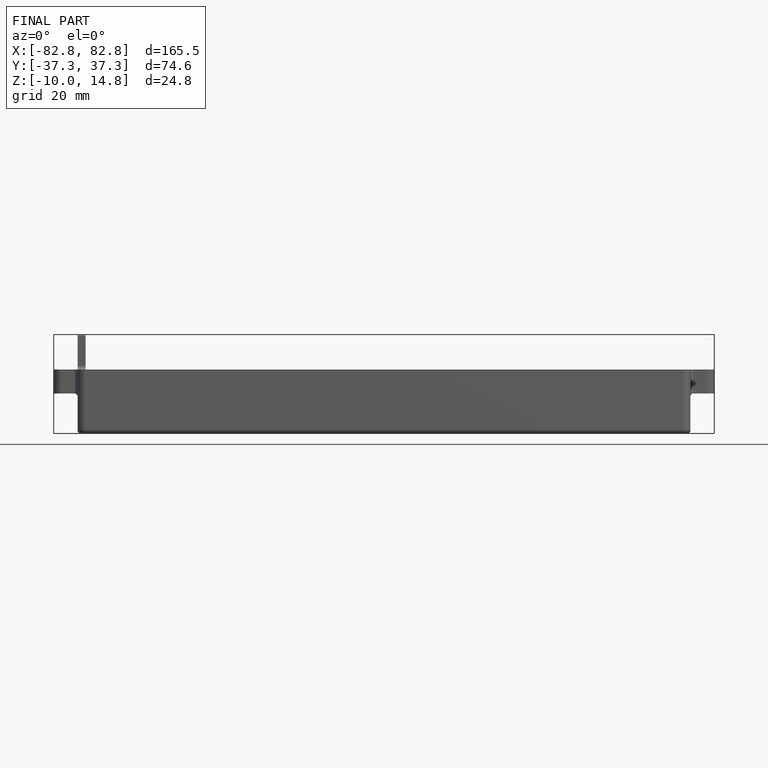
[diagram: finished part — front view with bounding-box wireframe]
